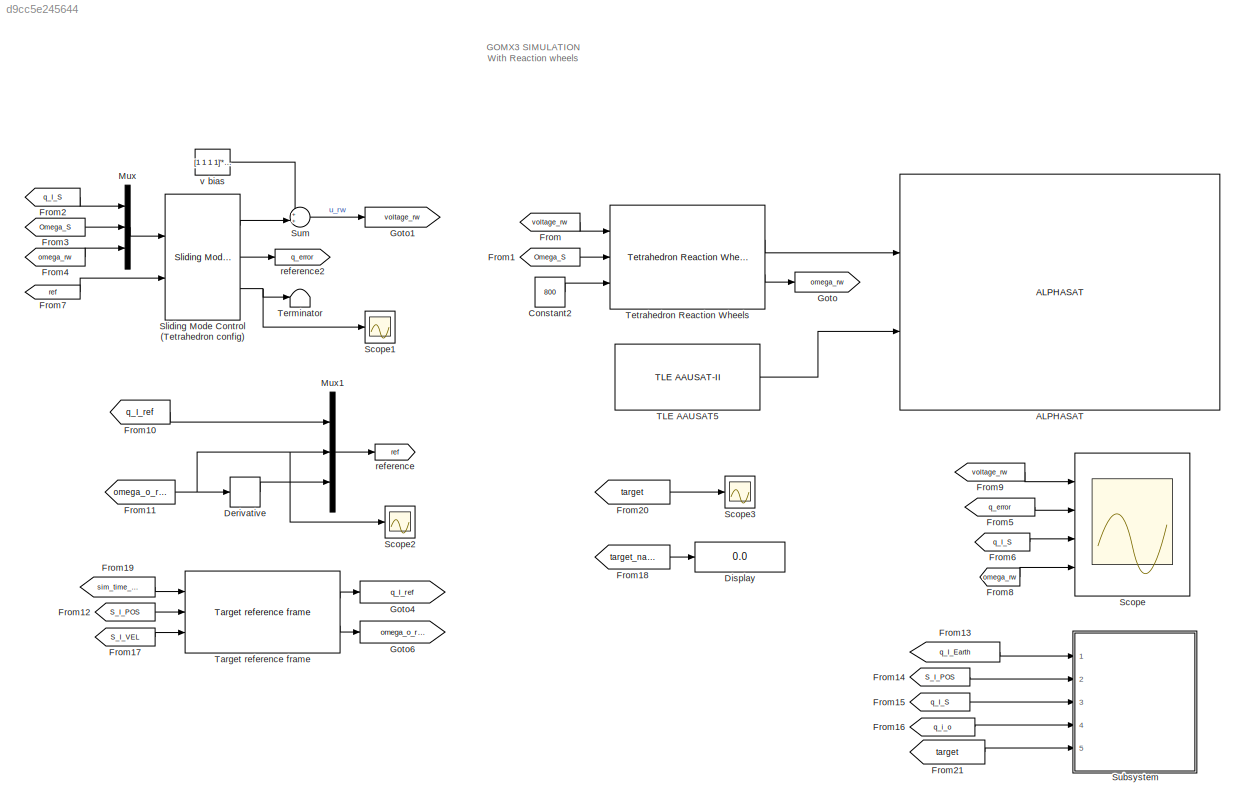
MODEL slx_d9cc5e245644
KIND model
CONFIG AbsTol = auto
CONFIG FixedStep = auto
CONFIG MaxStep = auto
CONFIG MinStep = auto
CONFIG RelTol = 1e-3
CONFIG SampleTimeConstraint = Unconstrained
CONFIG Solver = VariableStepAuto
CONFIG SolverMode = Auto
CONFIG SolverName = VariableStepAuto
CONFIG StartTime = 0.0
CONFIG StopTime = 600
WORKSPACE source: external: MAT-File  (data not in archive)
BLOCK [Reference] ALPHASAT  REF=aausat3_lib/ALPHASAT  (lib defined in mdl_4157f6465749, slx_d9305f96731e)
  Ports = [2]
  SourceBlock = aausat3_lib/ALPHASAT
BLOCK [Constant] Constant2
  Value = 800
BLOCK [Derivative] Derivative
BLOCK [Display] Display
  Decimation = 1
  Ports = [1]
BLOCK [From] From
  GotoTag = voltage_rw
BLOCK [From] From1
  GotoTag = Omega_S
  TagVisibility = global
BLOCK [From] From10
  GotoTag = q_I_ref
  TagVisibility = global
BLOCK [From] From11
  GotoTag = omega_o_ref
  TagVisibility = global
BLOCK [From] From12
  GotoTag = S_I_POS
  TagVisibility = global
BLOCK [From] From13
  CloseFcn = tagdialog Close
  GotoTag = q_I_Earth
  TagVisibility = global
BLOCK [From] From14
  GotoTag = S_I_POS
  TagVisibility = global
BLOCK [From] From15
  GotoTag = q_I_S
  TagVisibility = global
BLOCK [From] From16
  GotoTag = q_i_o
  TagVisibility = global
BLOCK [From] From17
  GotoTag = S_I_VEL
  TagVisibility = global
BLOCK [From] From18
  GotoTag = target_name
  TagVisibility = global
BLOCK [From] From19
  GotoTag = sim_time_JD
  TagVisibility = global
BLOCK [From] From2
  GotoTag = q_I_S
  TagVisibility = global
BLOCK [From] From20
  GotoTag = target
  TagVisibility = global
BLOCK [From] From21
  GotoTag = target
  TagVisibility = global
BLOCK [From] From3
  GotoTag = Omega_S
  TagVisibility = global
BLOCK [From] From4
  GotoTag = omega_rw
BLOCK [From] From5
  GotoTag = q_error
BLOCK [From] From6
  GotoTag = q_I_S
  TagVisibility = global
BLOCK [From] From7
  GotoTag = ref
BLOCK [From] From8
  GotoTag = omega_rw
BLOCK [From] From9
  GotoTag = voltage_rw
BLOCK [Goto] Goto
  GotoTag = omega_rw
BLOCK [Goto] Goto1
  GotoTag = voltage_rw
BLOCK [Goto] Goto4
  GotoTag = q_I_ref
  TagVisibility = global
BLOCK [Goto] Goto6
  GotoTag = omega_o_ref
  TagVisibility = global
BLOCK [Mux] Mux
  DisplayOption = bar
  Inputs = 3
  Ports = [3, 1]
BLOCK [Mux] Mux1
  DisplayOption = bar
  Inputs = 3
  Ports = [3, 1]
BLOCK [Scope] Scope
  NumInputPorts = 4
  Ports = [4]
  ScopeSpecificationString = Simulink.scopes.TimeScopeBlockCfg('CurrentConfiguration', extmgr.ConfigurationSet(extmgr.Configuration('Core','General UI',true),extmgr.Configuration('Core','Source UI',true),extmgr.Configuration('Sources','WiredSimulink',true,'DataLoggingVariableName','ScopeData1'),extmgr.Configuration('Visuals','Time Domain',true,'SerializedDisplays',{struct('MinYLimReal','-0.4125','MaxYLimReal','3.7125','YLabel...<+3398ch>
BLOCK [Scope] Scope1
  Ports = [1]
  ScopeSpecificationString = Simulink.scopes.TimeScopeBlockCfg('CurrentConfiguration', extmgr.ConfigurationSet(extmgr.Configuration('Core','General UI',true),extmgr.Configuration('Core','Source UI',true),extmgr.Configuration('Sources','WiredSimulink',true,'DataLoggingVariableName','ScopeData1'),extmgr.Configuration('Visuals','Time Domain',true,'SerializedDisplays',{struct('MinYLimReal','-0.37628','MaxYLimReal','0.56726','YLab...<+1571ch>
BLOCK [Scope] Scope2
  Ports = [1]
  ScopeSpecificationString = Simulink.scopes.TimeScopeBlockCfg('CurrentConfiguration', extmgr.ConfigurationSet(extmgr.Configuration('Core','General UI',true),extmgr.Configuration('Core','Source UI',true),extmgr.Configuration('Sources','WiredSimulink',true,'DataLoggingVariableName','ScopeData1'),extmgr.Configuration('Visuals','Time Domain',true,'SerializedDisplays',{struct('MinYLimReal','-0.02097','MaxYLimReal','0.00659','YLab...<+1790ch>
BLOCK [Scope] Scope3
  Ports = [1]
  ScopeSpecificationString = Simulink.scopes.TimeScopeBlockCfg('CurrentConfiguration', extmgr.ConfigurationSet(extmgr.Configuration('Core','General UI',true),extmgr.Configuration('Core','Source UI',true),extmgr.Configuration('Sources','WiredSimulink',true,'DataLoggingVariableName','ScopeData2'),extmgr.Configuration('Visuals','Time Domain',true,'SerializedDisplays',{struct('MinYLimReal','-6465076.1905','MaxYLimReal','4656929.5...<+1884ch>
BLOCK [Reference] Sliding Mode Control (Tetrahedron config)  REF=aausat3_lib/ACS/Sliding Mode Control  (lib defined in mdl_4157f6465749, slx_d9305f96731e)
(Tetrahedron config)
  Ports = [2, 3]
  SourceBlock = aausat3_lib/ACS/Sliding Mode Control\n(Tetrahedron config)
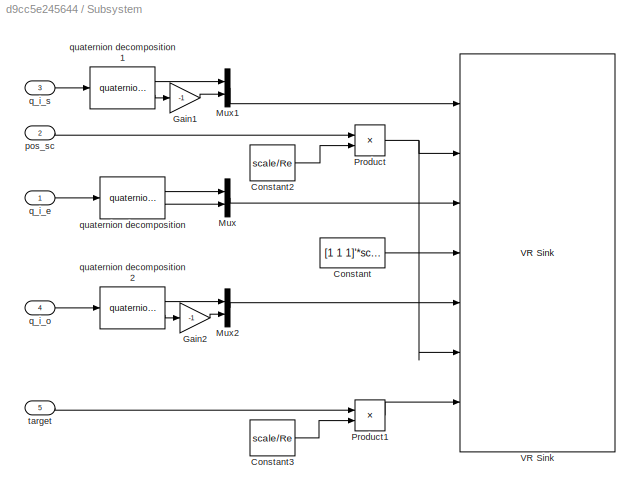
BLOCK [SubSystem] Subsystem
  Ports = [5]
  RequestExecContextInheritance = off
  Variant = off
BLOCK [Constant] Subsystem/Constant
  Value = [1 1 1]'*scale
BLOCK [Constant] Subsystem/Constant2
  Value = scale/Re
BLOCK [Constant] Subsystem/Constant3
  Value = scale/Re
BLOCK [Gain] Subsystem/Gain1
  Gain = -1
  OutDataTypeStr = Inherit: Inherit via internal rule
  ParamDataTypeStr = Inherit: Inherit via internal rule
  SaturateOnIntegerOverflow = off
BLOCK [Gain] Subsystem/Gain2
  Gain = -1
  OutDataTypeStr = Inherit: Inherit via internal rule
  ParamDataTypeStr = Inherit: Inherit via internal rule
  SaturateOnIntegerOverflow = off
BLOCK [Mux] Subsystem/Mux
  DisplayOption = bar
  Inputs = 2
  Ports = [2, 1]
BLOCK [Mux] Subsystem/Mux1
  DisplayOption = bar
  Inputs = 2
  Ports = [2, 1]
BLOCK [Mux] Subsystem/Mux2
  DisplayOption = bar
  Inputs = 2
  Ports = [2, 1]
BLOCK [Product] Subsystem/Product
  InputSameDT = off
  OutDataTypeStr = Inherit: Inherit via internal rule
  Ports = [2, 1]
  RndMeth = Floor
  SaturateOnIntegerOverflow = off
BLOCK [Product] Subsystem/Product1
  InputSameDT = off
  OutDataTypeStr = Inherit: Inherit via internal rule
  Ports = [2, 1]
  RndMeth = Floor
  SaturateOnIntegerOverflow = off
BLOCK [Reference] Subsystem/VR Sink  REF=vrlib/VR Sink
  InstantiateOnLoad = on
  Ports = [7]
  SourceBlock = vrlib/VR Sink
  SourceType = Virtual Reality Sink
BLOCK [Inport] Subsystem/pos_sc
  IconDisplay = Port number
  Port = 2
BLOCK [Inport] Subsystem/q_i_e
  IconDisplay = Port number
BLOCK [Inport] Subsystem/q_i_o
  IconDisplay = Port number
  Port = 4
BLOCK [Inport] Subsystem/q_i_s
  IconDisplay = Port number
  Port = 3
BLOCK [Reference] Subsystem/quaternion decomposition  REF=aausat3_lib/Math Utilities/Quaternion operations/quaternion decomposition  (lib defined in mdl_4157f6465749, slx_d9305f96731e)
  Ports = [1, 2]
  SourceBlock = aausat3_lib/Math Utilities/Quaternion operations/quaternion decomposition
  SourceType = SubSystem
BLOCK [Reference] Subsystem/quaternion decomposition1  REF=aausat3_lib/Math Utilities/Quaternion operations/quaternion decomposition  (lib defined in mdl_4157f6465749, slx_d9305f96731e)
  Ports = [1, 2]
  SourceBlock = aausat3_lib/Math Utilities/Quaternion operations/quaternion decomposition
  SourceType = SubSystem
BLOCK [Reference] Subsystem/quaternion decomposition2  REF=aausat3_lib/Math Utilities/Quaternion operations/quaternion decomposition  (lib defined in mdl_4157f6465749, slx_d9305f96731e)
  Ports = [1, 2]
  SourceBlock = aausat3_lib/Math Utilities/Quaternion operations/quaternion decomposition
  SourceType = SubSystem
BLOCK [Inport] Subsystem/target
  IconDisplay = Port number
  Port = 5
BLOCK [Sum] Sum
  IconShape = round
  InputSameDT = off
  Inputs = ++|
  OutDataTypeStr = Inherit: Inherit via internal rule
  Ports = [2, 1]
  SaturateOnIntegerOverflow = off
BLOCK [Reference] TLE AAUSAT5  REF=aausat3_lib/Orbit and Ephemeris/TLE AAUSAT-II  (lib defined in mdl_4157f6465749, slx_d9305f96731e)
  Ports = [0, 1]
  SourceBlock = aausat3_lib/Orbit and Ephemeris/TLE AAUSAT-II
BLOCK [Reference] Target reference frame  REF=aausat3_lib/Orbit and Ephemeris/Target reference frame  (lib defined in mdl_4157f6465749, slx_d9305f96731e)
  Ports = [3, 2]
  SourceBlock = aausat3_lib/Orbit and Ephemeris/Target reference frame
BLOCK [Terminator] Terminator
BLOCK [Reference] Tetrahedron Reaction Wheels  REF=aausat3_lib/Actuator Emulation/Tetrahedron Reaction Wheels  (lib defined in mdl_4157f6465749, slx_d9305f96731e)
  Ports = [3, 2]
  SourceBlock = aausat3_lib/Actuator Emulation/Tetrahedron Reaction Wheels
BLOCK [Goto] reference
  GotoTag = ref
BLOCK [Goto] reference2
  GotoTag = q_error
BLOCK [Constant] v bias
  Value = [1 1 1 1]'*3.3/2
ANNOTATION (root): GOMX3 SIMULATION With Reaction wheels
LINE Constant2:1 -> Tetrahedron Reaction Wheels:3
LINE Derivative:1 -> Mux1:3
LINE From10:1 -> Mux1:1
NET From11:1 -> Derivative:1, Mux1:2, Scope2:1
LINE From12:1 -> Target reference frame:2
LINE From13:1 -> Subsystem:1
LINE From14:1 -> Subsystem:2
LINE From15:1 -> Subsystem:3
LINE From16:1 -> Subsystem:4
LINE From17:1 -> Target reference frame:3
LINE From18:1 -> Display:1
LINE From19:1 -> Target reference frame:1
LINE From1:1 -> Tetrahedron Reaction Wheels:2
LINE From20:1 -> Scope3:1
LINE From21:1 -> Subsystem:5
LINE From2:1 -> Mux:1
LINE From3:1 -> Mux:2
LINE From4:1 -> Mux:3
LINE From5:1 -> Scope:2
LINE From6:1 -> Scope:3
LINE From7:1 -> Sliding Mode Control (Tetrahedron config):2
LINE From8:1 -> Scope:4
LINE From9:1 -> Scope:1
LINE From:1 -> Tetrahedron Reaction Wheels:1
LINE Mux1:1 -> reference:1
LINE Mux:1 -> Sliding Mode Control (Tetrahedron config):1
LINE Sliding Mode Control (Tetrahedron config):1 -> Sum:2
LINE Sliding Mode Control (Tetrahedron config):2 -> reference2:1
NET Sliding Mode Control (Tetrahedron config):3 -> Scope1:1, Terminator:1
LINE Subsystem/Constant2:1 -> Subsystem/Product:2
LINE Subsystem/Constant3:1 -> Subsystem/Product1:2
LINE Subsystem/Constant:1 -> Subsystem/VR Sink:4
LINE Subsystem/Gain1:1 -> Subsystem/Mux1:2
LINE Subsystem/Gain2:1 -> Subsystem/Mux2:2
LINE Subsystem/Mux1:1 -> Subsystem/VR Sink:1
LINE Subsystem/Mux2:1 -> Subsystem/VR Sink:5
LINE Subsystem/Mux:1 -> Subsystem/VR Sink:3
LINE Subsystem/Product1:1 -> Subsystem/VR Sink:7
NET Subsystem/Product:1 -> Subsystem/VR Sink:2, Subsystem/VR Sink:6
LINE Subsystem/pos_sc:1 -> Subsystem/Product:1
LINE Subsystem/q_i_e:1 -> Subsystem/quaternion decomposition:1
LINE Subsystem/q_i_o:1 -> Subsystem/quaternion decomposition2:1
LINE Subsystem/q_i_s:1 -> Subsystem/quaternion decomposition1:1
LINE Subsystem/quaternion decomposition1:1 -> Subsystem/Mux1:1
LINE Subsystem/quaternion decomposition1:2 -> Subsystem/Gain1:1
LINE Subsystem/quaternion decomposition2:1 -> Subsystem/Mux2:1
LINE Subsystem/quaternion decomposition2:2 -> Subsystem/Gain2:1
LINE Subsystem/quaternion decomposition:1 -> Subsystem/Mux:1
LINE Subsystem/quaternion decomposition:2 -> Subsystem/Mux:2
LINE Subsystem/target:1 -> Subsystem/Product1:1
LINE Sum:1 -> Goto1:1
LINE TLE AAUSAT5:1 -> ALPHASAT:2
LINE Target reference frame:1 -> Goto4:1
LINE Target reference frame:2 -> Goto6:1
LINE Tetrahedron Reaction Wheels:1 -> ALPHASAT:1
LINE Tetrahedron Reaction Wheels:2 -> Goto:1
LINE v bias:1 -> Sum:1
note: NET lines group one-source signal fan-out (src -> all destinations, sorted); 1:1 wires keep LINE
